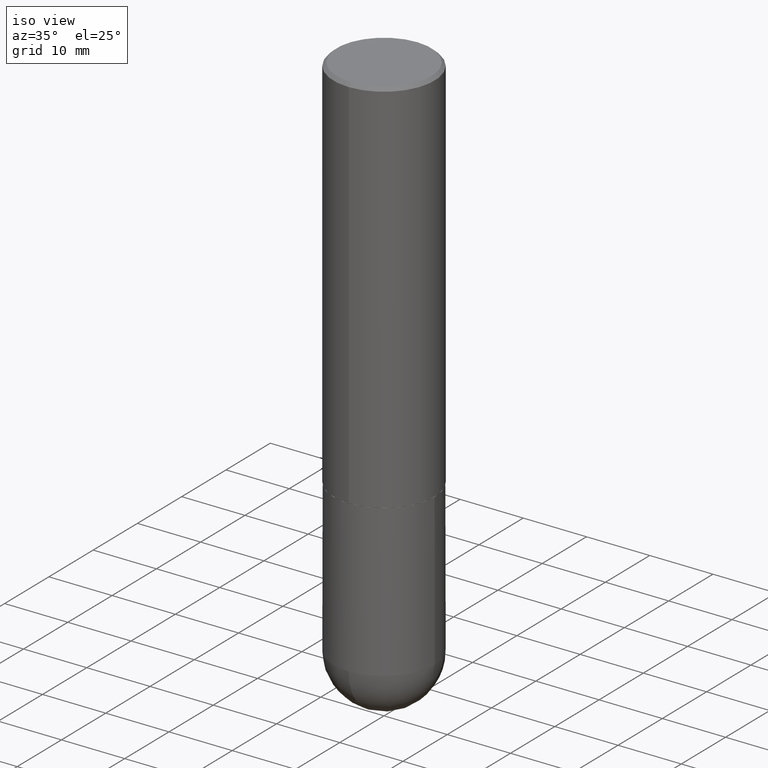
[diagram: clean part render]
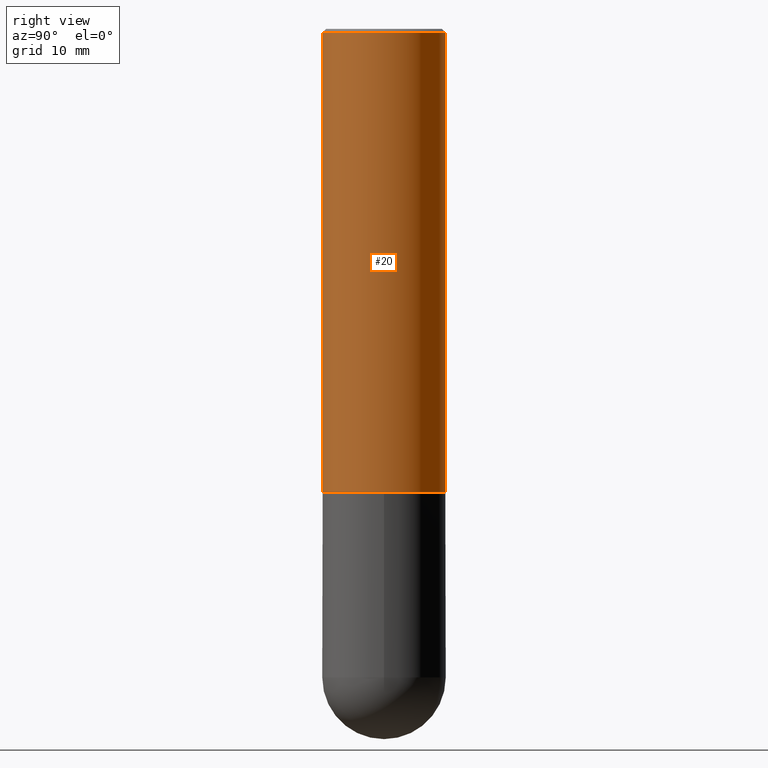
[diagram: tour spotlight — one face highlighted and labeled with its STEP entity id]
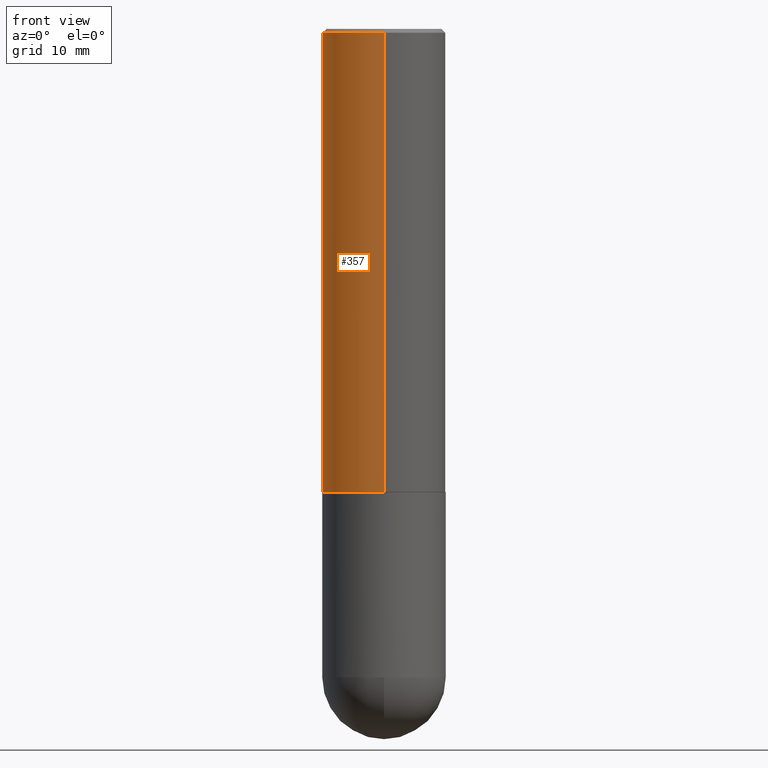
[diagram: tour spotlight — one face highlighted and labeled with its STEP entity id]
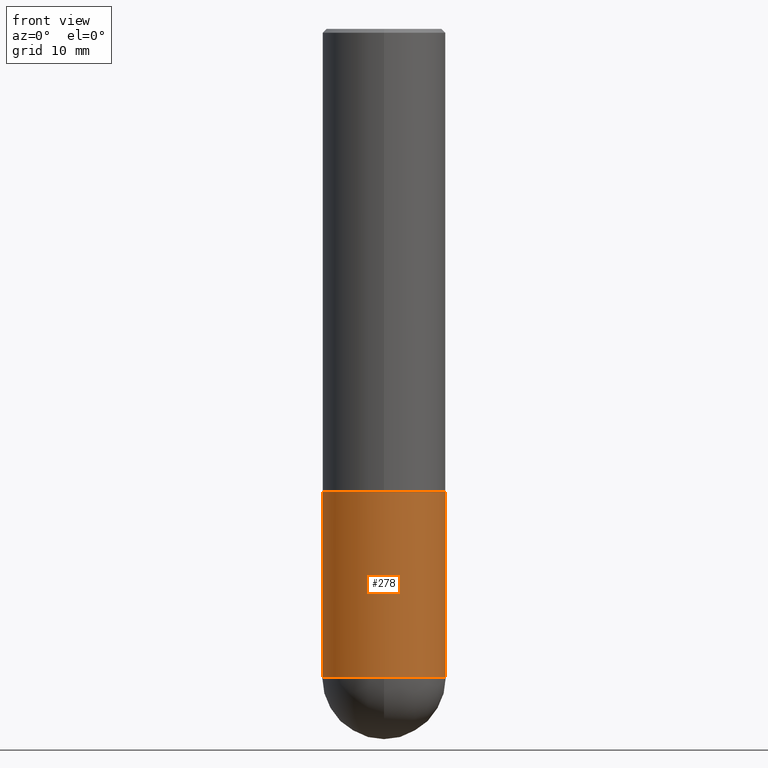
[diagram: tour spotlight — one face highlighted and labeled with its STEP entity id]
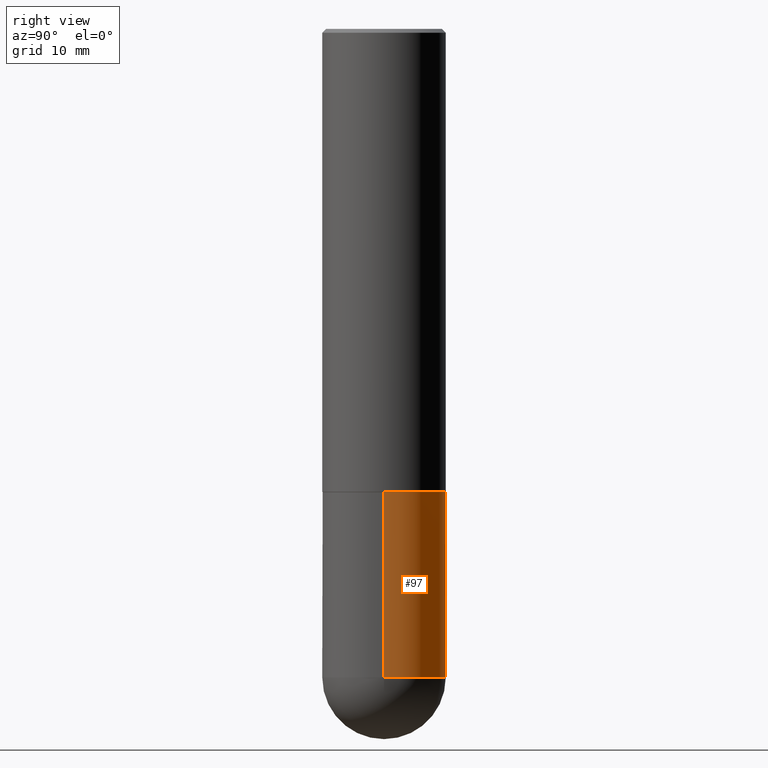
[diagram: tour spotlight — one face highlighted and labeled with its STEP entity id]
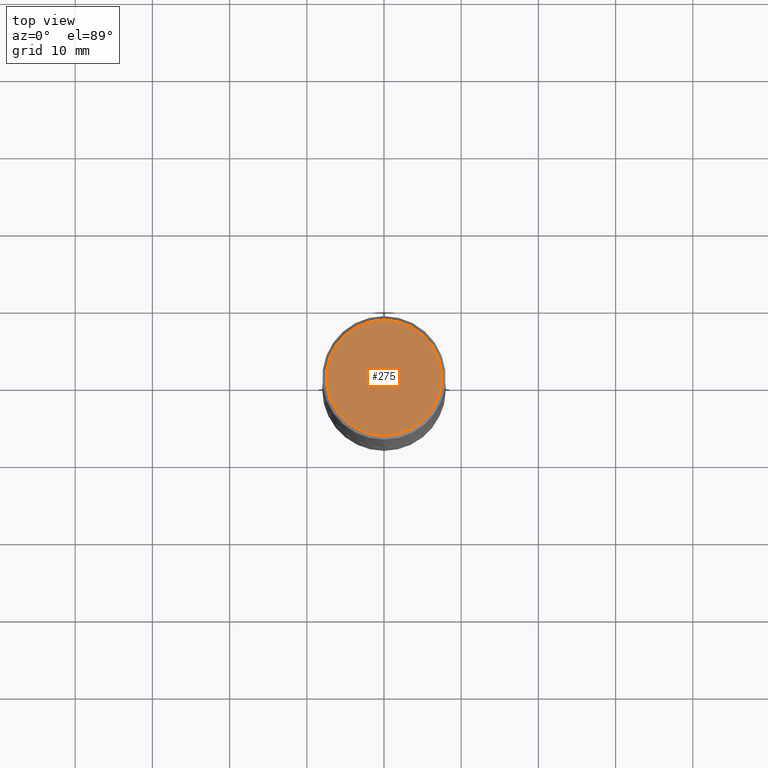
[diagram: tour spotlight — one face highlighted and labeled with its STEP entity id]
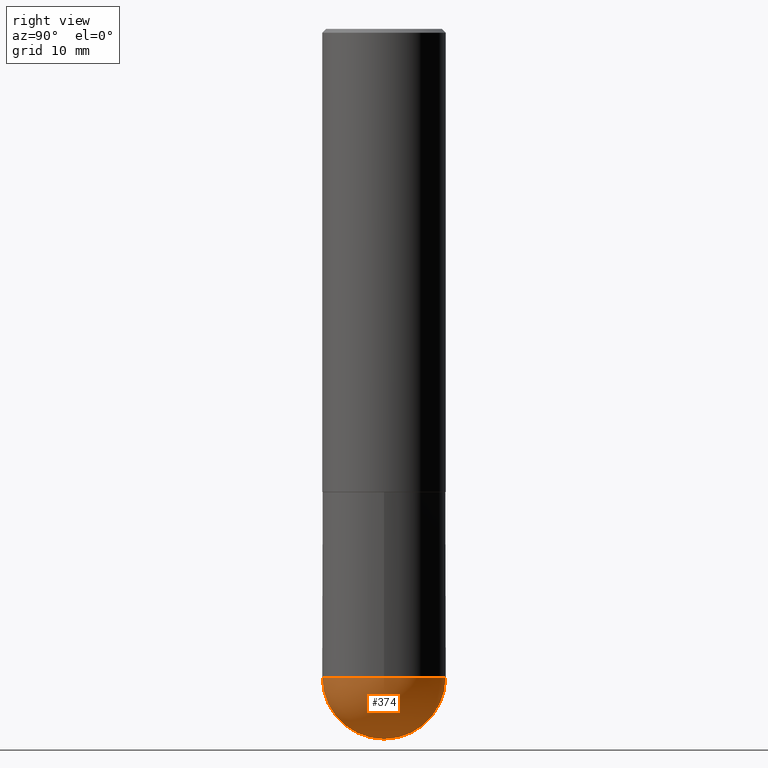
[diagram: tour spotlight — one face highlighted and labeled with its STEP entity id]
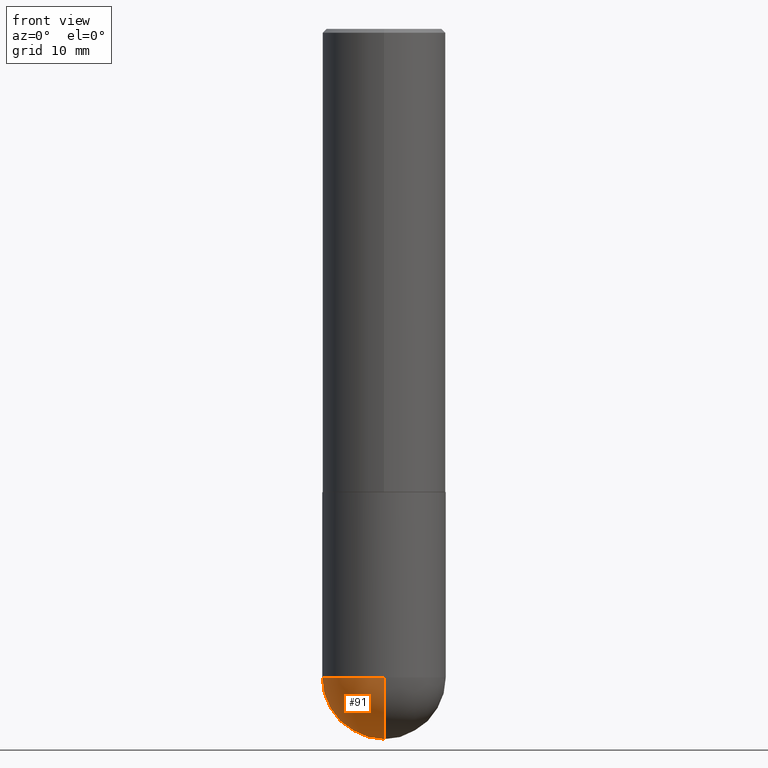
[diagram: tour spotlight — one face highlighted and labeled with its STEP entity id]
A machine part: a face-by-face anatomy tour. The part has 13 B-rep faces; the first image is the clean iso view, then the 7 largest visible faces are spotlighted one at a time (largest first), each with its STEP entity span.

Face 1 — right view, entity #20. In plain terms, the highlighted cylindrical surface (partial cylindrical patch) has radius 7.9997 mm, axis along (-0, 0, 1).
Definition (entity closure, byte-faithful):
#11 = CARTESIAN_POINT ( 'NONE',  ( -2.199284095337290265E-15, -0.3149500000000001743, 1.099388545901596591E-15 ) ) ;
#13 = DIRECTION ( 'NONE',  ( -6.982962677686265922E-15, -1.000000000000000000, 3.469564049740290009E-15 ) ) ;
#20 = ADVANCED_FACE ( 'NONE', ( #169 ), #106, .T. ) ;
#26 = CARTESIAN_POINT ( 'NONE',  ( 4.892061723104093615E-31, -6.981352887135100316E-17, -0.02000000000000007327 ) ) ;
#30 = DIRECTION ( 'NONE',  ( -6.982962677686265922E-15, -1.000000000000000000, 3.496670018878889100E-15 ) ) ;
#41 = VERTEX_POINT ( 'NONE', #130 ) ;
#42 = DIRECTION ( 'NONE',  ( -2.446030861552038119E-29, 3.490676443567537857E-15, 1.000000000000000000 ) ) ;
#58 = AXIS2_PLACEMENT_3D ( 'NONE', #65, #322, #102 ) ;
#59 = ORIENTED_EDGE ( 'NONE', *, *, #60, .F. ) ;
#60 = EDGE_CURVE ( 'NONE', #197, #262, #124, .T. ) ;
#65 = CARTESIAN_POINT ( 'NONE',  ( 0.000000000000000000, 0.000000000000000000, 0.000000000000000000 ) ) ;
#71 = ORIENTED_EDGE ( 'NONE', *, *, #132, .F. ) ;
#86 = CARTESIAN_POINT ( 'NONE',  ( 2.199284095337289871E-15, 0.3149499999999999522, -0.02000000000000117309 ) ) ;
#94 = CARTESIAN_POINT ( 'NONE',  ( 2.237854346276435985E-15, 0.3149500000000001743, -1.099388545901596591E-15 ) ) ;
#102 = DIRECTION ( 'NONE',  ( -6.982962677686264344E-15, -1.000000000000000000, 3.490676443567537462E-15 ) ) ;
#106 = CYLINDRICAL_SURFACE ( 'NONE', #58, 0.3149500000000001743 ) ;
#113 = CARTESIAN_POINT ( 'NONE',  ( -2.160713844398143363E-15, -0.3149500000000000632, -0.01999999999999896999 ) ) ;
#124 = CIRCLE ( 'NONE', #401, 0.3149500000000000077 ) ;
#130 = CARTESIAN_POINT ( 'NONE',  ( 2.237854346276465567E-15, 0.3149499999999920141, -2.361200000000000632 ) ) ;
#132 = EDGE_CURVE ( 'NONE', #201, #197, #263, .T. ) ;
#161 = VECTOR ( 'NONE', #399, 39.37007874015748143 ) ;
#169 = FACE_OUTER_BOUND ( 'NONE', #273, .T. ) ;
#196 = LINE ( 'NONE', #94, #321 ) ;
#197 = VERTEX_POINT ( 'NONE', #113 ) ;
#199 = ORIENTED_EDGE ( 'NONE', *, *, #234, .T. ) ;
#201 = VERTEX_POINT ( 'NONE', #359 ) ;
#202 = AXIS2_PLACEMENT_3D ( 'NONE', #332, #42, #13 ) ;
#234 = EDGE_CURVE ( 'NONE', #201, #41, #382, .T. ) ;
#262 = VERTEX_POINT ( 'NONE', #86 ) ;
#263 = LINE ( 'NONE', #11, #161 ) ;
#273 = EDGE_LOOP ( 'NONE', ( #199, #385, #59, #71 ) ) ;
#288 = DIRECTION ( 'NONE',  ( -2.446030861552038119E-29, 3.490676443567537857E-15, 1.000000000000000000 ) ) ;
#321 = VECTOR ( 'NONE', #379, 39.37007874015748143 ) ;
#322 = DIRECTION ( 'NONE',  ( -2.446030861552038119E-29, 3.490676443567537857E-15, 1.000000000000000000 ) ) ;
#332 = CARTESIAN_POINT ( 'NONE',  ( 5.775568070296671569E-29, -8.242185218551669522E-15, -2.361199999999999743 ) ) ;
#344 = EDGE_CURVE ( 'NONE', #41, #262, #196, .T. ) ;
#359 = CARTESIAN_POINT ( 'NONE',  ( -2.199284095337233467E-15, -0.3149500000000085564, -2.361199999999998411 ) ) ;
#379 = DIRECTION ( 'NONE',  ( -2.446030861552038400E-29, 3.490676443567537857E-15, 1.000000000000000000 ) ) ;
#382 = CIRCLE ( 'NONE', #202, 0.3149500000000002853 ) ;
#385 = ORIENTED_EDGE ( 'NONE', *, *, #344, .T. ) ;
#399 = DIRECTION ( 'NONE',  ( -2.446030861552038400E-29, 3.490676443567537857E-15, 1.000000000000000000 ) ) ;
#401 = AXIS2_PLACEMENT_3D ( 'NONE', #26, #288, #30 ) ;

Face 2 — front view, entity #357. In plain terms, the highlighted cylindrical surface (partial cylindrical patch) has radius 7.9997 mm, axis along (-0, 0, 1).
Definition (entity closure, byte-faithful):
#3 = AXIS2_PLACEMENT_3D ( 'NONE', #151, #307, #120 ) ;
#10 = DIRECTION ( 'NONE',  ( -6.982962677686264344E-15, -1.000000000000000000, 3.490676443567537462E-15 ) ) ;
#11 = CARTESIAN_POINT ( 'NONE',  ( -2.199284095337290265E-15, -0.3149500000000001743, 1.099388545901596591E-15 ) ) ;
#24 = CARTESIAN_POINT ( 'NONE',  ( 0.000000000000000000, 0.000000000000000000, 0.000000000000000000 ) ) ;
#41 = VERTEX_POINT ( 'NONE', #130 ) ;
#45 = DIRECTION ( 'NONE',  ( -6.982962677686265922E-15, -1.000000000000000000, 3.496670018878889100E-15 ) ) ;
#64 = DIRECTION ( 'NONE',  ( -2.446030861552038119E-29, 3.490676443567537857E-15, 1.000000000000000000 ) ) ;
#73 = EDGE_LOOP ( 'NONE', ( #305, #171, #101, #393 ) ) ;
#86 = CARTESIAN_POINT ( 'NONE',  ( 2.199284095337289871E-15, 0.3149499999999999522, -0.02000000000000117309 ) ) ;
#94 = CARTESIAN_POINT ( 'NONE',  ( 2.237854346276435985E-15, 0.3149500000000001743, -1.099388545901596591E-15 ) ) ;
#98 = AXIS2_PLACEMENT_3D ( 'NONE', #368, #206, #45 ) ;
#101 = ORIENTED_EDGE ( 'NONE', *, *, #132, .T. ) ;
#113 = CARTESIAN_POINT ( 'NONE',  ( -2.160713844398143363E-15, -0.3149500000000000632, -0.01999999999999896999 ) ) ;
#120 = DIRECTION ( 'NONE',  ( -6.982962677686265922E-15, -1.000000000000000000, 3.469564049740290009E-15 ) ) ;
#127 = AXIS2_PLACEMENT_3D ( 'NONE', #24, #64, #10 ) ;
#130 = CARTESIAN_POINT ( 'NONE',  ( 2.237854346276465567E-15, 0.3149499999999920141, -2.361200000000000632 ) ) ;
#132 = EDGE_CURVE ( 'NONE', #201, #197, #263, .T. ) ;
#151 = CARTESIAN_POINT ( 'NONE',  ( 5.775568070296671569E-29, -8.242185218551669522E-15, -2.361199999999999743 ) ) ;
#161 = VECTOR ( 'NONE', #399, 39.37007874015748143 ) ;
#171 = ORIENTED_EDGE ( 'NONE', *, *, #304, .T. ) ;
#196 = LINE ( 'NONE', #94, #321 ) ;
#197 = VERTEX_POINT ( 'NONE', #113 ) ;
#201 = VERTEX_POINT ( 'NONE', #359 ) ;
#206 = DIRECTION ( 'NONE',  ( -2.446030861552038119E-29, 3.490676443567537857E-15, 1.000000000000000000 ) ) ;
#225 = EDGE_CURVE ( 'NONE', #262, #197, #346, .T. ) ;
#262 = VERTEX_POINT ( 'NONE', #86 ) ;
#263 = LINE ( 'NONE', #11, #161 ) ;
#304 = EDGE_CURVE ( 'NONE', #41, #201, #375, .T. ) ;
#305 = ORIENTED_EDGE ( 'NONE', *, *, #344, .F. ) ;
#307 = DIRECTION ( 'NONE',  ( -2.446030861552038119E-29, 3.490676443567537857E-15, 1.000000000000000000 ) ) ;
#321 = VECTOR ( 'NONE', #379, 39.37007874015748143 ) ;
#323 = FACE_OUTER_BOUND ( 'NONE', #73, .T. ) ;
#343 = CYLINDRICAL_SURFACE ( 'NONE', #127, 0.3149500000000001743 ) ;
#344 = EDGE_CURVE ( 'NONE', #41, #262, #196, .T. ) ;
#346 = CIRCLE ( 'NONE', #98, 0.3149500000000000077 ) ;
#357 = ADVANCED_FACE ( 'NONE', ( #323 ), #343, .T. ) ;
#359 = CARTESIAN_POINT ( 'NONE',  ( -2.199284095337233467E-15, -0.3149500000000085564, -2.361199999999998411 ) ) ;
#368 = CARTESIAN_POINT ( 'NONE',  ( 4.892061723104093615E-31, -6.981352887135100316E-17, -0.02000000000000007327 ) ) ;
#375 = CIRCLE ( 'NONE', #3, 0.3149500000000002853 ) ;
#379 = DIRECTION ( 'NONE',  ( -2.446030861552038400E-29, 3.490676443567537857E-15, 1.000000000000000000 ) ) ;
#393 = ORIENTED_EDGE ( 'NONE', *, *, #225, .F. ) ;
#399 = DIRECTION ( 'NONE',  ( -2.446030861552038400E-29, 3.490676443567537857E-15, 1.000000000000000000 ) ) ;

Face 3 — front view, entity #278. In plain terms, the highlighted cylindrical surface (partial cylindrical patch) has radius 7.9997 mm, axis along (-0, 0, 1).
Definition (entity closure, byte-faithful):
#5 = EDGE_CURVE ( 'NONE', #315, #9, #264, .T. ) ;
#9 = VERTEX_POINT ( 'NONE', #318 ) ;
#15 = DIRECTION ( 'NONE',  ( -2.445468806185136597E-29, 3.491481338843145583E-15, 1.000000000000000000 ) ) ;
#16 = VERTEX_POINT ( 'NONE', #195 ) ;
#17 = DIRECTION ( 'NONE',  ( -2.445468806185136877E-29, 3.491481338843145188E-15, 1.000000000000000000 ) ) ;
#28 = CARTESIAN_POINT ( 'NONE',  ( -2.237854346276355915E-15, -0.3149500000000118871, -3.307049999999999379 ) ) ;
#43 = DIRECTION ( 'NONE',  ( 1.000000000000000000, -6.982962677686266711E-15, 4.876176775795936353E-29 ) ) ;
#80 = CARTESIAN_POINT ( 'NONE',  ( 0.3149500000000000077, -2.199284095337289871E-15, 1.535751875536930130E-29 ) ) ;
#128 = AXIS2_PLACEMENT_3D ( 'NONE', #371, #213, #245 ) ;
#136 = ORIENTED_EDGE ( 'NONE', *, *, #281, .F. ) ;
#142 = CARTESIAN_POINT ( 'NONE',  ( 0.000000000000000000, 0.000000000000000000, 0.000000000000000000 ) ) ;
#150 = LINE ( 'NONE', #335, #172 ) ;
#156 = EDGE_CURVE ( 'NONE', #16, #177, #150, .T. ) ;
#170 = ORIENTED_EDGE ( 'NONE', *, *, #198, .T. ) ;
#172 = VECTOR ( 'NONE', #17, 39.37007874015748143 ) ;
#176 = DIRECTION ( 'NONE',  ( 1.000000000000000000, -6.982962677686266711E-15, 0.000000000000000000 ) ) ;
#177 = VERTEX_POINT ( 'NONE', #338 ) ;
#195 = CARTESIAN_POINT ( 'NONE',  ( -0.3149500000000000077, -7.659185943841817750E-15, -3.307050000000000267 ) ) ;
#198 = EDGE_CURVE ( 'NONE', #9, #367, #301, .T. ) ;
#203 = CYLINDRICAL_SURFACE ( 'NONE', #302, 0.3149500000000000077 ) ;
#213 = DIRECTION ( 'NONE',  ( -2.445468806185136597E-29, 3.491481338843145583E-15, 1.000000000000000000 ) ) ;
#240 = DIRECTION ( 'NONE',  ( -2.445468806185136597E-29, 3.491481338843145583E-15, 1.000000000000000000 ) ) ;
#245 = DIRECTION ( 'NONE',  ( 1.000000000000000000, -6.982962677686269866E-15, 0.000000000000000000 ) ) ;
#248 = EDGE_CURVE ( 'NONE', #16, #315, #360, .T. ) ;
#264 = CIRCLE ( 'NONE', #372, 0.3149500000000000077 ) ;
#269 = ORIENTED_EDGE ( 'NONE', *, *, #5, .T. ) ;
#272 = CARTESIAN_POINT ( 'NONE',  ( 5.776686413970529753E-29, -8.247577218615278049E-15, -2.362199999999999633 ) ) ;
#274 = DIRECTION ( 'NONE',  ( -2.445468806185136877E-29, 3.491481338843145188E-15, 1.000000000000000000 ) ) ;
#278 = ADVANCED_FACE ( 'NONE', ( #299 ), #203, .T. ) ;
#279 = ORIENTED_EDGE ( 'NONE', *, *, #156, .F. ) ;
#280 = VECTOR ( 'NONE', #274, 39.37007874015748143 ) ;
#281 = EDGE_CURVE ( 'NONE', #177, #367, #287, .T. ) ;
#287 = CIRCLE ( 'NONE', #361, 0.3149500000000000077 ) ;
#299 = FACE_OUTER_BOUND ( 'NONE', #337, .T. ) ;
#301 = LINE ( 'NONE', #80, #280 ) ;
#302 = AXIS2_PLACEMENT_3D ( 'NONE', #142, #303, #43 ) ;
#303 = DIRECTION ( 'NONE',  ( -2.445468806185136597E-29, 3.491481338843145583E-15, 1.000000000000000000 ) ) ;
#315 = VERTEX_POINT ( 'NONE', #28 ) ;
#318 = CARTESIAN_POINT ( 'NONE',  ( 0.3149500000000000077, -1.209632438545554361E-14, -3.307050000000000267 ) ) ;
#326 = ORIENTED_EDGE ( 'NONE', *, *, #248, .T. ) ;
#335 = CARTESIAN_POINT ( 'NONE',  ( -0.3149500000000000077, 2.237854346276435590E-15, -1.549218606675782676E-29 ) ) ;
#337 = EDGE_LOOP ( 'NONE', ( #279, #326, #269, #170, #136 ) ) ;
#338 = CARTESIAN_POINT ( 'NONE',  ( -0.3149500000000000077, -7.659185943841816172E-15, -2.362199999999999633 ) ) ;
#351 = DIRECTION ( 'NONE',  ( 1.000000000000000000, -6.982962677686269866E-15, 0.000000000000000000 ) ) ;
#353 = CARTESIAN_POINT ( 'NONE',  ( 0.3149500000000000077, -1.044686131395256792E-14, -2.362199999999999633 ) ) ;
#360 = CIRCLE ( 'NONE', #128, 0.3149500000000000077 ) ;
#361 = AXIS2_PLACEMENT_3D ( 'NONE', #272, #15, #176 ) ;
#367 = VERTEX_POINT ( 'NONE', #353 ) ;
#371 = CARTESIAN_POINT ( 'NONE',  ( 8.087287615494557476E-29, -1.154650336162122627E-14, -3.307050000000000267 ) ) ;
#372 = AXIS2_PLACEMENT_3D ( 'NONE', #392, #240, #351 ) ;
#392 = CARTESIAN_POINT ( 'NONE',  ( 8.087287615494557476E-29, -1.154650336162122627E-14, -3.307050000000000267 ) ) ;

Face 4 — right view, entity #97. In plain terms, the highlighted cylindrical surface (partial cylindrical patch) has radius 7.9997 mm, axis along (-0, 0, 1).
Definition (entity closure, byte-faithful):
#4 = ORIENTED_EDGE ( 'NONE', *, *, #403, .T. ) ;
#9 = VERTEX_POINT ( 'NONE', #318 ) ;
#14 = AXIS2_PLACEMENT_3D ( 'NONE', #296, #85, #354 ) ;
#16 = VERTEX_POINT ( 'NONE', #195 ) ;
#17 = DIRECTION ( 'NONE',  ( -2.445468806185136877E-29, 3.491481338843145188E-15, 1.000000000000000000 ) ) ;
#25 = AXIS2_PLACEMENT_3D ( 'NONE', #174, #394, #306 ) ;
#37 = ORIENTED_EDGE ( 'NONE', *, *, #198, .F. ) ;
#54 = CARTESIAN_POINT ( 'NONE',  ( 0.000000000000000000, 0.000000000000000000, 0.000000000000000000 ) ) ;
#56 = AXIS2_PLACEMENT_3D ( 'NONE', #54, #125, #391 ) ;
#57 = DIRECTION ( 'NONE',  ( 1.000000000000000000, -6.982962677686269866E-15, 0.000000000000000000 ) ) ;
#63 = FACE_OUTER_BOUND ( 'NONE', #246, .T. ) ;
#78 = ORIENTED_EDGE ( 'NONE', *, *, #175, .F. ) ;
#80 = CARTESIAN_POINT ( 'NONE',  ( 0.3149500000000000077, -2.199284095337289871E-15, 1.535751875536930130E-29 ) ) ;
#85 = DIRECTION ( 'NONE',  ( -2.445468806185136597E-29, 3.491481338843145583E-15, 1.000000000000000000 ) ) ;
#97 = ADVANCED_FACE ( 'NONE', ( #63 ), #404, .T. ) ;
#125 = DIRECTION ( 'NONE',  ( -2.445468806185136597E-29, 3.491481338843145583E-15, 1.000000000000000000 ) ) ;
#140 = ORIENTED_EDGE ( 'NONE', *, *, #377, .T. ) ;
#150 = LINE ( 'NONE', #335, #172 ) ;
#156 = EDGE_CURVE ( 'NONE', #16, #177, #150, .T. ) ;
#168 = CIRCLE ( 'NONE', #14, 0.3149500000000000077 ) ;
#172 = VECTOR ( 'NONE', #17, 39.37007874015748143 ) ;
#174 = CARTESIAN_POINT ( 'NONE',  ( 5.776686413970529753E-29, -8.247577218615278049E-15, -2.362199999999999633 ) ) ;
#175 = EDGE_CURVE ( 'NONE', #367, #177, #186, .T. ) ;
#177 = VERTEX_POINT ( 'NONE', #338 ) ;
#186 = CIRCLE ( 'NONE', #25, 0.3149500000000000077 ) ;
#192 = CARTESIAN_POINT ( 'NONE',  ( 2.199284095337369546E-15, 0.3149499999999882394, -3.307050000000001599 ) ) ;
#195 = CARTESIAN_POINT ( 'NONE',  ( -0.3149500000000000077, -7.659185943841817750E-15, -3.307050000000000267 ) ) ;
#198 = EDGE_CURVE ( 'NONE', #9, #367, #301, .T. ) ;
#217 = DIRECTION ( 'NONE',  ( -2.445468806185136597E-29, 3.491481338843145583E-15, 1.000000000000000000 ) ) ;
#246 = EDGE_LOOP ( 'NONE', ( #4, #366, #78, #37, #140 ) ) ;
#274 = DIRECTION ( 'NONE',  ( -2.445468806185136877E-29, 3.491481338843145188E-15, 1.000000000000000000 ) ) ;
#280 = VECTOR ( 'NONE', #274, 39.37007874015748143 ) ;
#294 = CIRCLE ( 'NONE', #352, 0.3149500000000000077 ) ;
#296 = CARTESIAN_POINT ( 'NONE',  ( 8.087287615494557476E-29, -1.154650336162122627E-14, -3.307050000000000267 ) ) ;
#301 = LINE ( 'NONE', #80, #280 ) ;
#306 = DIRECTION ( 'NONE',  ( 1.000000000000000000, -6.982962677686266711E-15, 0.000000000000000000 ) ) ;
#318 = CARTESIAN_POINT ( 'NONE',  ( 0.3149500000000000077, -1.209632438545554361E-14, -3.307050000000000267 ) ) ;
#335 = CARTESIAN_POINT ( 'NONE',  ( -0.3149500000000000077, 2.237854346276435590E-15, -1.549218606675782676E-29 ) ) ;
#338 = CARTESIAN_POINT ( 'NONE',  ( -0.3149500000000000077, -7.659185943841816172E-15, -2.362199999999999633 ) ) ;
#342 = CARTESIAN_POINT ( 'NONE',  ( 8.087287615494557476E-29, -1.154650336162122627E-14, -3.307050000000000267 ) ) ;
#352 = AXIS2_PLACEMENT_3D ( 'NONE', #342, #217, #57 ) ;
#353 = CARTESIAN_POINT ( 'NONE',  ( 0.3149500000000000077, -1.044686131395256792E-14, -2.362199999999999633 ) ) ;
#354 = DIRECTION ( 'NONE',  ( 1.000000000000000000, -6.982962677686269866E-15, 0.000000000000000000 ) ) ;
#358 = VERTEX_POINT ( 'NONE', #192 ) ;
#366 = ORIENTED_EDGE ( 'NONE', *, *, #156, .T. ) ;
#367 = VERTEX_POINT ( 'NONE', #353 ) ;
#377 = EDGE_CURVE ( 'NONE', #9, #358, #168, .T. ) ;
#391 = DIRECTION ( 'NONE',  ( 1.000000000000000000, -6.982962677686266711E-15, 4.876176775795936353E-29 ) ) ;
#394 = DIRECTION ( 'NONE',  ( -2.445468806185136597E-29, 3.491481338843145583E-15, 1.000000000000000000 ) ) ;
#403 = EDGE_CURVE ( 'NONE', #358, #16, #294, .T. ) ;
#404 = CYLINDRICAL_SURFACE ( 'NONE', #56, 0.3149500000000000077 ) ;

Face 5 — top view, entity #275. In plain terms, the highlighted planar face has unit normal (0, -0, -1).
Definition (entity closure, byte-faithful):
#39 = CIRCLE ( 'NONE', #133, 0.2949499999999998234 ) ;
#40 = CARTESIAN_POINT ( 'NONE',  ( 2.059624841783562880E-15, 0.2949499999999998234, -9.379207004238558873E-16 ) ) ;
#48 = CARTESIAN_POINT ( 'NONE',  ( 2.129454468560426573E-15, 0.2949499999999998234, -8.462663838174674313E-16 ) ) ;
#77 = FACE_OUTER_BOUND ( 'NONE', #230, .T. ) ;
#81 = DIRECTION ( 'NONE',  ( 2.446030861552037839E-29, -3.490676443567537857E-15, -1.000000000000000000 ) ) ;
#84 = DIRECTION ( 'NONE',  ( -2.446030861552038119E-29, 3.490676443567537857E-15, 1.000000000000000000 ) ) ;
#114 = PLANE ( 'NONE',  #237 ) ;
#133 = AXIS2_PLACEMENT_3D ( 'NONE', #145, #84, #153 ) ;
#145 = CARTESIAN_POINT ( 'NONE',  ( -4.483785740273760110E-45, 6.398711278584033995E-31, 1.833086332127772080E-16 ) ) ;
#153 = DIRECTION ( 'NONE',  ( -6.982962677686265922E-15, -1.000000000000000000, 3.490676443567538251E-15 ) ) ;
#178 = CIRCLE ( 'NONE', #410, 0.2949499999999998234 ) ;
#181 = EDGE_CURVE ( 'NONE', #308, #324, #39, .T. ) ;
#205 = ORIENTED_EDGE ( 'NONE', *, *, #181, .T. ) ;
#207 = CARTESIAN_POINT ( 'NONE',  ( -4.483785740273760110E-45, 6.398711278584033995E-31, 1.833086332127772080E-16 ) ) ;
#230 = EDGE_LOOP ( 'NONE', ( #205, #244 ) ) ;
#237 = AXIS2_PLACEMENT_3D ( 'NONE', #40, #81, #333 ) ;
#244 = ORIENTED_EDGE ( 'NONE', *, *, #258, .T. ) ;
#258 = EDGE_CURVE ( 'NONE', #324, #308, #178, .T. ) ;
#275 = ADVANCED_FACE ( 'NONE', ( #77 ), #114, .F. ) ;
#308 = VERTEX_POINT ( 'NONE', #48 ) ;
#324 = VERTEX_POINT ( 'NONE', #388 ) ;
#333 = DIRECTION ( 'NONE',  ( 6.982962677686265922E-15, 1.000000000000000000, -3.490676443567537857E-15 ) ) ;
#362 = DIRECTION ( 'NONE',  ( -6.982962677686265922E-15, -1.000000000000000000, 3.490676443567538251E-15 ) ) ;
#365 = DIRECTION ( 'NONE',  ( -2.446030861552038119E-29, 3.490676443567537857E-15, 1.000000000000000000 ) ) ;
#388 = CARTESIAN_POINT ( 'NONE',  ( -2.092108864420427637E-15, -0.2949499999999998234, 1.212883650243022044E-15 ) ) ;
#410 = AXIS2_PLACEMENT_3D ( 'NONE', #207, #365, #362 ) ;

Face 6 — right view, entity #374. In plain terms, the highlighted spherical surface has radius 7.9997 mm.
Definition (entity closure, byte-faithful):
#5 = EDGE_CURVE ( 'NONE', #315, #9, #264, .T. ) ;
#6 = CARTESIAN_POINT ( 'NONE',  ( 7.756167837580670108E-29, -1.202068572976127498E-14, -3.307049999999999823 ) ) ;
#9 = VERTEX_POINT ( 'NONE', #318 ) ;
#14 = AXIS2_PLACEMENT_3D ( 'NONE', #296, #85, #354 ) ;
#28 = CARTESIAN_POINT ( 'NONE',  ( -2.237854346276355915E-15, -0.3149500000000118871, -3.307049999999999379 ) ) ;
#50 = EDGE_CURVE ( 'NONE', #68, #315, #310, .T. ) ;
#53 = CIRCLE ( 'NONE', #67, 0.3149500000000001743 ) ;
#67 = AXIS2_PLACEMENT_3D ( 'NONE', #265, #111, #325 ) ;
#68 = VERTEX_POINT ( 'NONE', #411 ) ;
#70 = SPHERICAL_SURFACE ( 'NONE', #204, 0.3149500000000001743 ) ;
#83 = ORIENTED_EDGE ( 'NONE', *, *, #377, .F. ) ;
#85 = DIRECTION ( 'NONE',  ( -2.445468806185136597E-29, 3.491481338843145583E-15, 1.000000000000000000 ) ) ;
#99 = CARTESIAN_POINT ( 'NONE',  ( 7.756167837580670108E-29, -1.202068572976127498E-14, -3.307049999999999823 ) ) ;
#105 = FACE_OUTER_BOUND ( 'NONE', #389, .T. ) ;
#111 = DIRECTION ( 'NONE',  ( 1.000000000000000000, -6.982962677686265922E-15, 4.883557194083112340E-29 ) ) ;
#155 = AXIS2_PLACEMENT_3D ( 'NONE', #99, #214, #341 ) ;
#165 = ORIENTED_EDGE ( 'NONE', *, *, #50, .F. ) ;
#168 = CIRCLE ( 'NONE', #14, 0.3149500000000000077 ) ;
#192 = CARTESIAN_POINT ( 'NONE',  ( 2.199284095337369546E-15, 0.3149499999999882394, -3.307050000000001599 ) ) ;
#204 = AXIS2_PLACEMENT_3D ( 'NONE', #6, #242, #250 ) ;
#214 = DIRECTION ( 'NONE',  ( -1.000000000000000000, 7.105427357601001070E-15, -4.926315508542082329E-29 ) ) ;
#240 = DIRECTION ( 'NONE',  ( -2.445468806185136597E-29, 3.491481338843145583E-15, 1.000000000000000000 ) ) ;
#242 = DIRECTION ( 'NONE',  ( -1.000000000000000000, 6.982962677686265133E-15, -4.883557194083112901E-29 ) ) ;
#250 = DIRECTION ( 'NONE',  ( 6.982962677686265133E-15, 1.000000000000000000, -3.469564049740291586E-15 ) ) ;
#264 = CIRCLE ( 'NONE', #372, 0.3149500000000000077 ) ;
#265 = CARTESIAN_POINT ( 'NONE',  ( 7.756167837580670108E-29, -1.202068572976127498E-14, -3.307049999999999823 ) ) ;
#296 = CARTESIAN_POINT ( 'NONE',  ( 8.087287615494557476E-29, -1.154650336162122627E-14, -3.307050000000000267 ) ) ;
#300 = ORIENTED_EDGE ( 'NONE', *, *, #5, .F. ) ;
#310 = CIRCLE ( 'NONE', #155, 0.3149500000000001743 ) ;
#315 = VERTEX_POINT ( 'NONE', #28 ) ;
#318 = CARTESIAN_POINT ( 'NONE',  ( 0.3149500000000000077, -1.209632438545554361E-14, -3.307050000000000267 ) ) ;
#325 = DIRECTION ( 'NONE',  ( 6.982962677686264344E-15, 1.000000000000000000, 0.000000000000000000 ) ) ;
#341 = DIRECTION ( 'NONE',  ( -7.105427357600999492E-15, -1.000000000000000000, 0.000000000000000000 ) ) ;
#351 = DIRECTION ( 'NONE',  ( 1.000000000000000000, -6.982962677686269866E-15, 0.000000000000000000 ) ) ;
#354 = DIRECTION ( 'NONE',  ( 1.000000000000000000, -6.982962677686269866E-15, 0.000000000000000000 ) ) ;
#358 = VERTEX_POINT ( 'NONE', #192 ) ;
#364 = EDGE_CURVE ( 'NONE', #68, #358, #53, .T. ) ;
#372 = AXIS2_PLACEMENT_3D ( 'NONE', #392, #240, #351 ) ;
#374 = ADVANCED_FACE ( 'NONE', ( #105 ), #70, .T. ) ;
#377 = EDGE_CURVE ( 'NONE', #9, #358, #168, .T. ) ;
#383 = ORIENTED_EDGE ( 'NONE', *, *, #364, .T. ) ;
#389 = EDGE_LOOP ( 'NONE', ( #165, #383, #83, #300 ) ) ;
#392 = CARTESIAN_POINT ( 'NONE',  ( 8.087287615494557476E-29, -1.154650336162122627E-14, -3.307050000000000267 ) ) ;
#411 = CARTESIAN_POINT ( 'NONE',  ( 8.539834969227531055E-29, -1.310104265196035002E-14, -3.621999999999999886 ) ) ;

Face 7 — front view, entity #91. In plain terms, the highlighted spherical surface has radius 7.9997 mm.
Definition (entity closure, byte-faithful):
#16 = VERTEX_POINT ( 'NONE', #195 ) ;
#21 = SPHERICAL_SURFACE ( 'NONE', #135, 0.3149500000000001743 ) ;
#28 = CARTESIAN_POINT ( 'NONE',  ( -2.237854346276355915E-15, -0.3149500000000118871, -3.307049999999999379 ) ) ;
#50 = EDGE_CURVE ( 'NONE', #68, #315, #310, .T. ) ;
#53 = CIRCLE ( 'NONE', #67, 0.3149500000000001743 ) ;
#57 = DIRECTION ( 'NONE',  ( 1.000000000000000000, -6.982962677686269866E-15, 0.000000000000000000 ) ) ;
#67 = AXIS2_PLACEMENT_3D ( 'NONE', #265, #111, #325 ) ;
#68 = VERTEX_POINT ( 'NONE', #411 ) ;
#74 = ORIENTED_EDGE ( 'NONE', *, *, #364, .F. ) ;
#75 = ORIENTED_EDGE ( 'NONE', *, *, #50, .T. ) ;
#91 = ADVANCED_FACE ( 'NONE', ( #223 ), #21, .T. ) ;
#99 = CARTESIAN_POINT ( 'NONE',  ( 7.756167837580670108E-29, -1.202068572976127498E-14, -3.307049999999999823 ) ) ;
#111 = DIRECTION ( 'NONE',  ( 1.000000000000000000, -6.982962677686265922E-15, 4.883557194083112340E-29 ) ) ;
#128 = AXIS2_PLACEMENT_3D ( 'NONE', #371, #213, #245 ) ;
#135 = AXIS2_PLACEMENT_3D ( 'NONE', #219, #166, #292 ) ;
#154 = ORIENTED_EDGE ( 'NONE', *, *, #248, .F. ) ;
#155 = AXIS2_PLACEMENT_3D ( 'NONE', #99, #214, #341 ) ;
#166 = DIRECTION ( 'NONE',  ( -1.000000000000000000, 6.982962677686265133E-15, -4.883557194083112901E-29 ) ) ;
#192 = CARTESIAN_POINT ( 'NONE',  ( 2.199284095337369546E-15, 0.3149499999999882394, -3.307050000000001599 ) ) ;
#195 = CARTESIAN_POINT ( 'NONE',  ( -0.3149500000000000077, -7.659185943841817750E-15, -3.307050000000000267 ) ) ;
#213 = DIRECTION ( 'NONE',  ( -2.445468806185136597E-29, 3.491481338843145583E-15, 1.000000000000000000 ) ) ;
#214 = DIRECTION ( 'NONE',  ( -1.000000000000000000, 7.105427357601001070E-15, -4.926315508542082329E-29 ) ) ;
#217 = DIRECTION ( 'NONE',  ( -2.445468806185136597E-29, 3.491481338843145583E-15, 1.000000000000000000 ) ) ;
#219 = CARTESIAN_POINT ( 'NONE',  ( 7.756167837580670108E-29, -1.202068572976127498E-14, -3.307049999999999823 ) ) ;
#223 = FACE_OUTER_BOUND ( 'NONE', #330, .T. ) ;
#238 = ORIENTED_EDGE ( 'NONE', *, *, #403, .F. ) ;
#245 = DIRECTION ( 'NONE',  ( 1.000000000000000000, -6.982962677686269866E-15, 0.000000000000000000 ) ) ;
#248 = EDGE_CURVE ( 'NONE', #16, #315, #360, .T. ) ;
#265 = CARTESIAN_POINT ( 'NONE',  ( 7.756167837580670108E-29, -1.202068572976127498E-14, -3.307049999999999823 ) ) ;
#292 = DIRECTION ( 'NONE',  ( 6.982962677686265133E-15, 1.000000000000000000, -3.469564049740291586E-15 ) ) ;
#294 = CIRCLE ( 'NONE', #352, 0.3149500000000000077 ) ;
#310 = CIRCLE ( 'NONE', #155, 0.3149500000000001743 ) ;
#315 = VERTEX_POINT ( 'NONE', #28 ) ;
#325 = DIRECTION ( 'NONE',  ( 6.982962677686264344E-15, 1.000000000000000000, 0.000000000000000000 ) ) ;
#330 = EDGE_LOOP ( 'NONE', ( #74, #75, #154, #238 ) ) ;
#341 = DIRECTION ( 'NONE',  ( -7.105427357600999492E-15, -1.000000000000000000, 0.000000000000000000 ) ) ;
#342 = CARTESIAN_POINT ( 'NONE',  ( 8.087287615494557476E-29, -1.154650336162122627E-14, -3.307050000000000267 ) ) ;
#352 = AXIS2_PLACEMENT_3D ( 'NONE', #342, #217, #57 ) ;
#358 = VERTEX_POINT ( 'NONE', #192 ) ;
#360 = CIRCLE ( 'NONE', #128, 0.3149500000000000077 ) ;
#364 = EDGE_CURVE ( 'NONE', #68, #358, #53, .T. ) ;
#371 = CARTESIAN_POINT ( 'NONE',  ( 8.087287615494557476E-29, -1.154650336162122627E-14, -3.307050000000000267 ) ) ;
#403 = EDGE_CURVE ( 'NONE', #358, #16, #294, .T. ) ;
#411 = CARTESIAN_POINT ( 'NONE',  ( 8.539834969227531055E-29, -1.310104265196035002E-14, -3.621999999999999886 ) ) ;